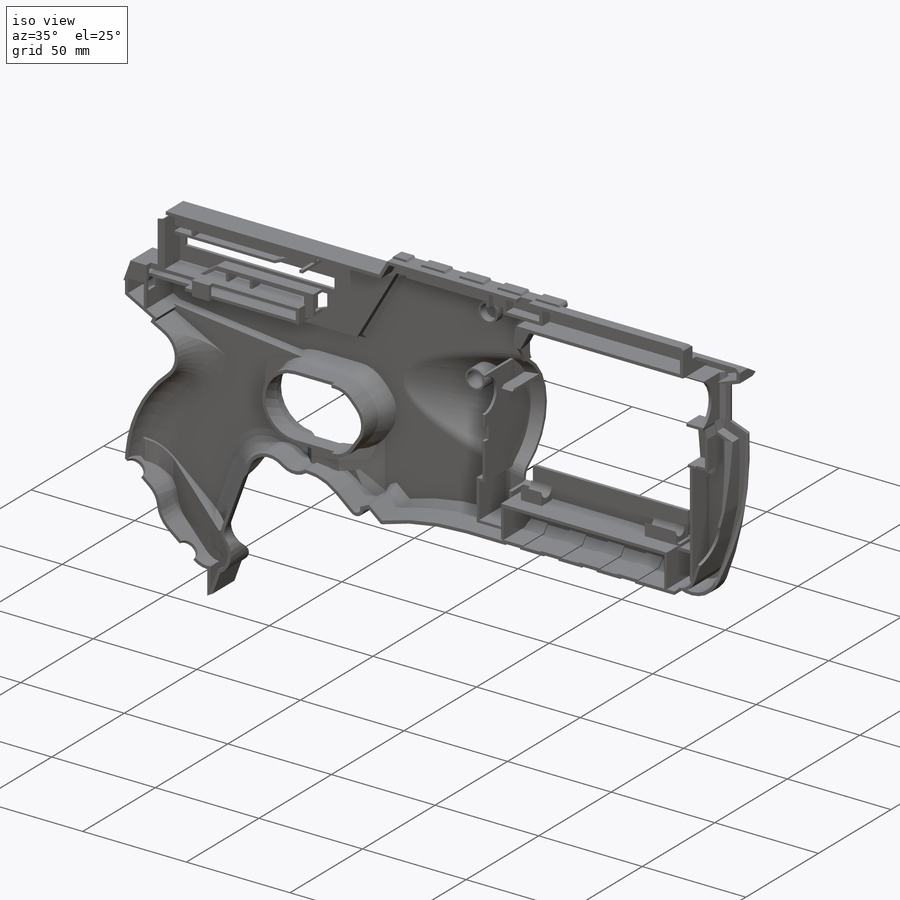
[diagram: iso view]
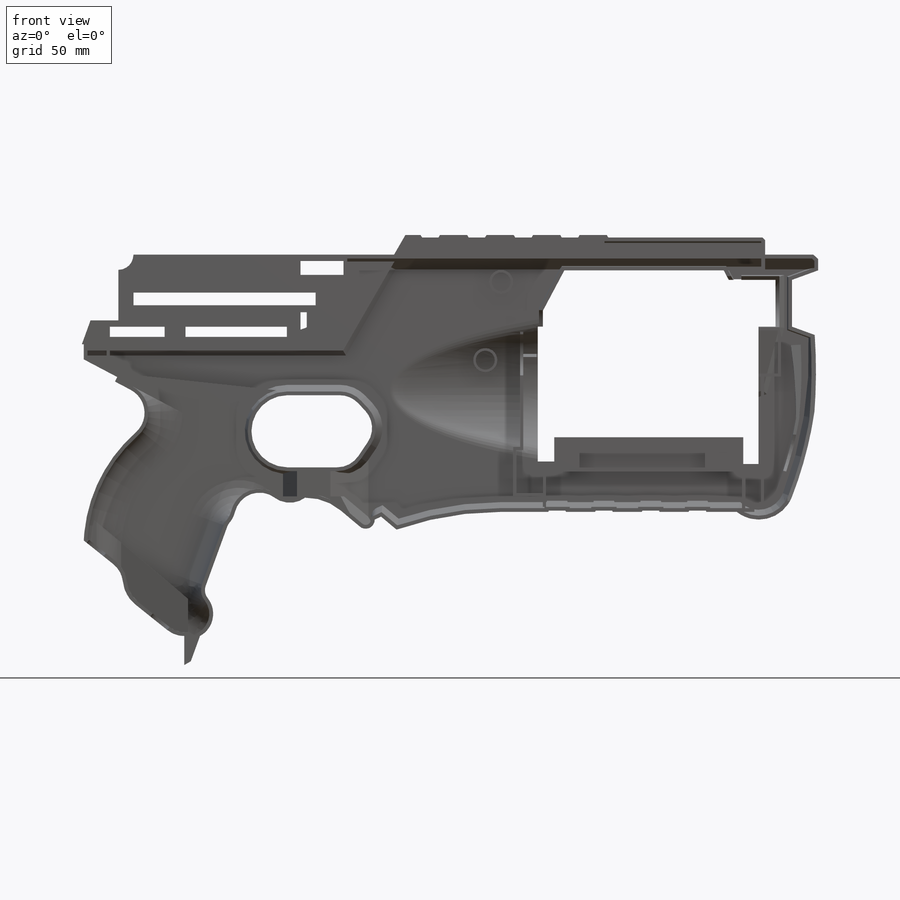
[diagram: front view]
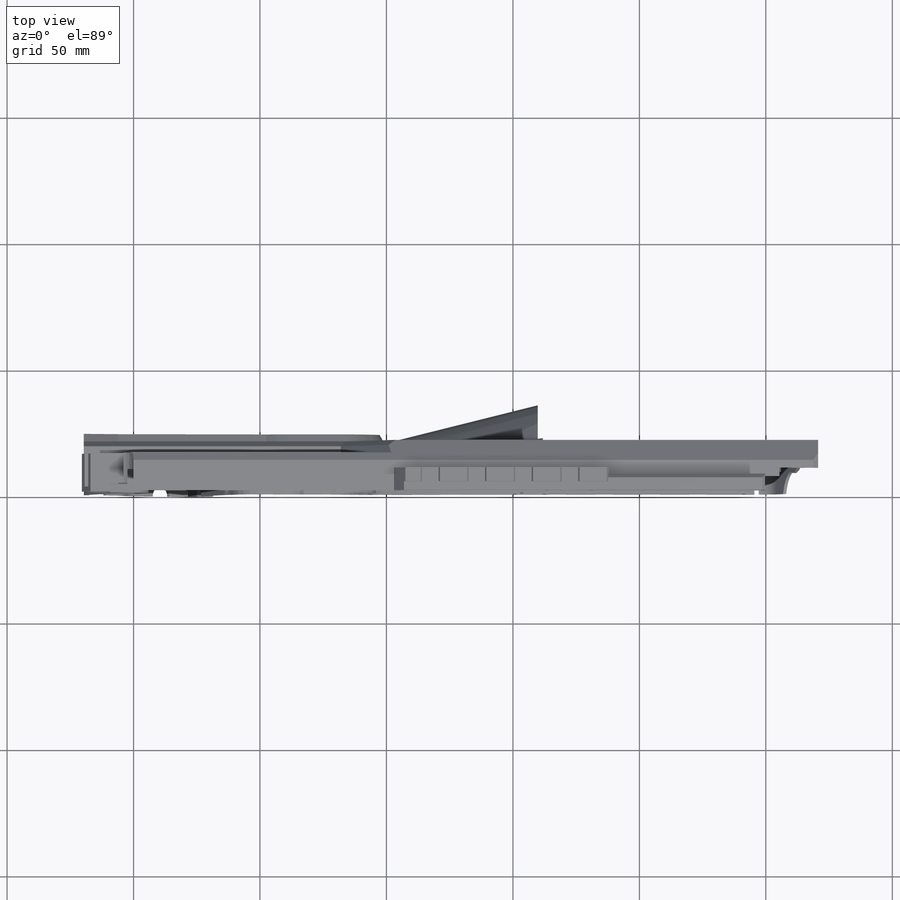
[diagram: top view]
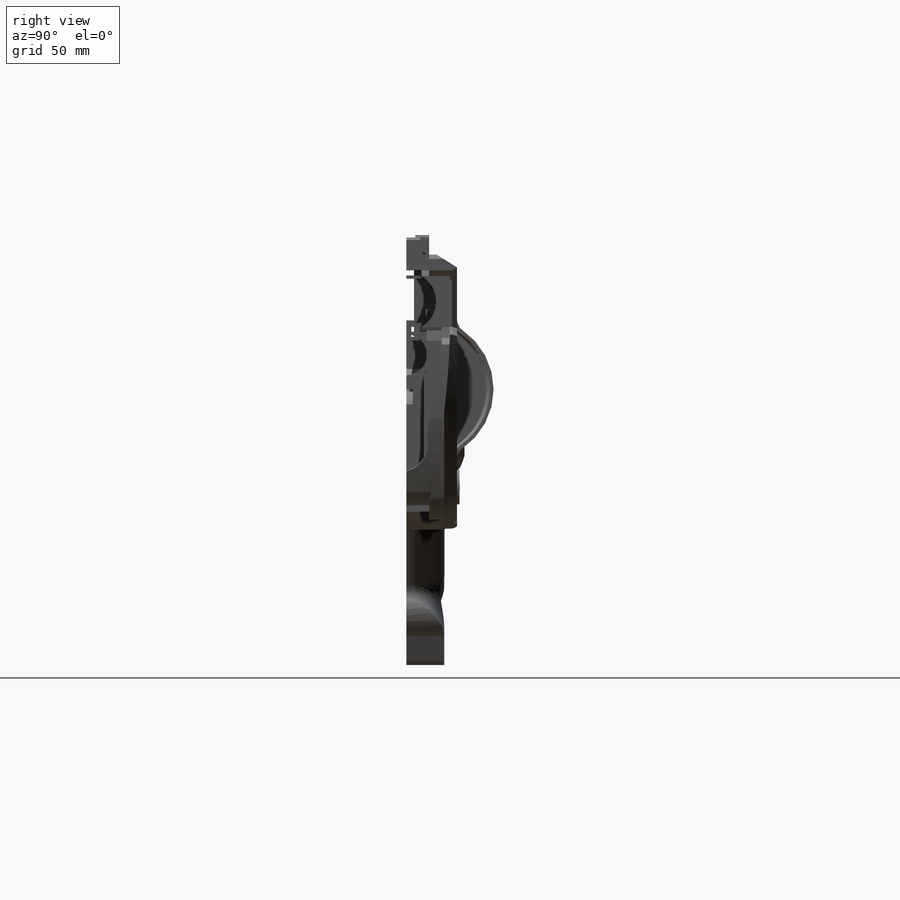
[diagram: right view]
SOLIDWORKS PART (.sldprt)
format: sldprt  version: not decoded by parser v0  size: 5,408,256 bytes
history: native  units: mm
features: sketch x102, cut_extrude x57, extrude x34, chamfer x12, plane x11, fillet x6, sweep x4, material x1, shell x1, revolve x1, mirror x1 (+11 scaffold rows collapsed)
feature tree (241):
  scaffold x11  (default folders/planes/origin — collapsed)
  material  "Material <not specified>"
  sketch  "Sketch2"  dims[c1.D36=~110.940765mm c1.D38=~13.353721mm c1.D40=155.0mm c1.D42=~14.061367mm c1.D48=~2.004294mm c1.D50=1.5mm c1.D47=~3.827472mm c1.D53=~7.515107mm c1.D56=~10.278032mm c1.D64=~3.579455mm c1.D69=~941.34066mm c1.D71=~16.889725mm c1.D75=~14.586344mm c1.D79=~166.938925mm c1.D86=~10.025053mm c1.D88=~5.902008mm c1.D89=5.0mm c1.D90=5.0mm c1.D91=10.0mm c1.D92=10.0mm c1.D94=10.0mm c1.D1=103.0mm c1.D2=4.5mm c1.D3=7.0mm c2.D3=60.0deg c2.D4=6.0mm c2.D5=~3.67001mm c3.D5=60.0deg c3.D6=~7.771884mm c4.D6=60.0deg c5.D6=6.5mm c5.D7=1.0mm c5.D8=0.0mm c5.D9=10.75mm c5.D10=~1.154701mm c6.D10=240.0deg c7.D10=~1.188894mm c8.D10=60.0deg c9.D10=0.0mm c9.D11=1.0mm c9.D12=6.5mm c9.D13=10.75mm c9.D14=1.0mm c10.D14=60.0deg c10.D15=~0.707107mm c11.D15=30.0deg c12.D15=~1.234296mm c13.D15=60.0deg c13.D16=0.0mm c13.D17=6.5mm c13.D18=1.0mm c13.D19=10.75mm c13.D20=~1.351331mm c14.D20=240.0deg c15.D20=~6.912146mm c16.D20=240.0deg c17.D20=6.5mm c17.D21=0.0mm c17.D22=1.0mm c17.D23=10.75mm c17.D24=1.0mm c17.D25=62.0mm c17.D26=4.5mm c17.D27=16.5mm c17.D28=6.0mm c17.D29=4.0mm c17.D30=4.5mm c17.D31=11.0mm c17.D32=~9.526279mm c18.D32=70.0deg c18.D33=18.5mm c18.D34=11.0mm c18.D35=0.0mm c18.D36=50.0mm c18.D37=0.0mm c18.D38=9.0mm c18.D39=3.0mm c18.D41=93.5mm c18.D42=7.0mm c18.D43=41.0mm c18.D44=8.0mm c18.D45=8.0mm c19.D45=40.0deg c19.D46=2.75mm c19.D47=~1.235236mm c20.D47=100.0deg c20.D48=0.0mm c20.D49=6.5mm c20.D50=1.5mm c20.D51=10.0mm c21.D47=5.0mm c21.D52=14.0mm c21.D53=0.0mm c21.D54=2.0mm c21.D55=12.0mm c21.D56=0.0mm c21.D57=0.0mm c21.D58=6.0mm c21.D59=20.0mm c21.D60=11.0mm c21.D61=10.0mm c21.D62=~8.423007mm c22.D62=~122.616134deg c23.D62=20.0mm c24.D62=20.0deg c24.D63=0.75mm c24.D64=6.0mm c24.D65=15.0mm c24.D66=7.0mm c24.D67=2.0mm c24.D68=7.0mm c24.D69=17.0mm c24.D70=2.0mm c24.D71=0.0mm c24.D72=113.0mm c24.D73=15.0mm c24.D74=11.0mm c24.D75=7.0mm c24.D76=16.0mm c24.D77=8.0mm c24.D78=16.0mm c24.D79=0.0mm c24.D80=6.75mm c24.D81=11.5mm c24.D82=3.0mm c24.D83=~2.598076mm c25.D83=60.0deg c25.D84=~9.907412mm c26.D84=160.0deg c27.D84=~14.242252mm c28.D84=40.0deg c28.D85=10.0mm c28.D86=22.0mm c28.D87=2.0mm c28.D88=~33.997483mm c29.D86=15.0mm c29.D88=~16.913754mm c30.D88=70.0deg c30.D93=25.0mm c30.D95=~95.024443mm c30.D36=108.5mm c31.D95=~154.679991mm c31.D74=150.75mm]
  extrude  "Boss-Extrude1"  Depth=20mm
  sketch  "Sketch3"  dims[D1=1.0mm]
  cut_extrude  "Cut-Extrude1"  Depth=5mm
  sketch  "Sketch4"  dims[D1=9.0mm D2=0.0mm D3=6.5mm]
  cut_extrude  "Cut-Extrude2"  [1 undecoded]
  sketch  "Sketch5"  dims[c1.D1=~5.047214mm c1.D2=~76.33725mm c2.D1=0.0mm c2.D2=1.5mm]
  cut_extrude  "Cut-Extrude3"  [1 undecoded]
  sketch  "Sketch6"  dims[D1=17.5mm D2=80.0mm D3=6.5mm D4=12.0mm D5=0.0mm D6=0.0mm D7=13.0mm D8=62.0mm D9=0.0mm D10=63.0mm]
  cut_extrude  "Cut-Extrude4"  Depth=39.5mm
  sketch  "Sketch7"  dims[c1.D1=~13.523321mm c1.D8=10.0mm c2.D1=25.0mm c2.D2=~16.39274mm c2.D3=20.0mm c2.D4=20.0mm c2.D5=~19.746502mm c2.D6=20.0mm c3.D4=28.5mm c3.D5=0.0mm c3.D6=12.0mm c3.D7=64.75mm]
  cut_extrude  "Cut-Extrude5"  Depth=39.5mm
  sketch  "Sketch8"  dims[D1=~19.065026mm]
  cut_extrude  "Cut-Extrude6"  Depth=39.5mm
  sketch  "Sketch9"  dims[D1=~109.268157mm]
  cut_extrude  "Cut-Extrude7"  Depth=5mm
  sketch  "Sketch10"  dims[c1.D1=~5.736652mm c1.D2=~84.946314mm c2.D1=83.0mm c2.D2=0.0mm c2.D3=2.5mm c2.D4=5.5mm]
  cut_extrude  "Cut-Extrude8"  Depth=5mm
  sketch  "Sketch11"  dims[c1.D1=5.5mm c1.D2=~12.20085mm c2.D1=~2.903495mm c2.D2=~72.264768mm c3.D1=12.0mm c3.D2=5.0mm c3.D3=0.0mm c3.D4=7.0mm c3.D5=72.0mm]
  cut_extrude  "Cut-Extrude9"  Depth=23mm
  sketch  "Sketch12"  dims[c1.D1=~3.584802mm c1.D2=~96.901666mm c2.D1=80.0mm c2.D2=4.0mm c2.D3=8.5mm]
  cut_extrude  "Cut-Extrude10"  Depth=13mm
  sketch  "Sketch13"  dims[c1.D1=4.0mm c1.D2=~9.83426mm c2.D1=~13.002059mm c2.D2=~43.083426mm c3.D1=4.0mm c3.D2=~33.249663mm c4.D1=35.0mm c4.D2=20.0mm c4.D3=15.0mm]
  cut_extrude  "Cut-Extrude11"  Depth=13mm
  sketch  "Sketch14"  dims[D1=5.5mm D2=2.75mm D3=8.0mm D4=6.0mm D5=69.0mm]
  cut_extrude  "Cut-Extrude12"  Depth=6mm
  fillet  "Fillet1"  Radius=15mm
  fillet  "Fillet2"  Radius=15mm
  sketch  "Sketch15"  dims[D1=12.0mm D2=23.0mm D3=5.5mm D4=5.5mm D5=6.0mm D6=0.0mm]
  cut_extrude  "Cut-Extrude16"  Depth=10mm
  sketch  "Sketch16"  dims[D1=2.0mm D2=26.0mm D3=6.0mm]
  cut_extrude  "Cut-Extrude17"  Depth=5mm
  sketch  "Sketch17"  dims[c1.D3=40.5742mm c1.D1=6.0mm c1.D2=50.0mm c2.D3=15.0mm]
  plane  "Plane1"  Offset=10mm
  plane  "Plane2"  Offset=20mm
  plane  "Plane3"  Offset=30mm
  plane  "Plane4"  Offset=40mm
  plane  "Plane5"  Offset=50mm
  plane  "Plane6"  Offset=60mm
  sketch  "Sketch23"  dims[c1.D1=~0.567489mm c1.D2=~0.499081mm c2.D1=0.5mm c2.D2=~0.499081mm c2.D3=0.0mm c2.D4=30.75mm c3.D1=0.25mm c3.D2=1.0mm]
  chamfer  "Chamfer1"  Distance=12mm
  chamfer  "Chamfer2"  Distance=3mm
  chamfer  "Chamfer3"  Distance=5mm
  chamfer  "Chamfer4"  Distance=2mm
  chamfer  "Chamfer5"  Distance=5mm
  chamfer  "Chamfer6"  Distance=3mm
  chamfer  "Chamfer7"  Distance=1mm
  chamfer  "Chamfer8"  Distance=0.5mm
  sketch  "Sketch24"  dims[D1=26.0mm]
  extrude  "Boss-Extrude9"  [1 undecoded]
  sketch  "Sketch25"  dims[c1.D1=~5.294229mm c1.D2=~6.241597mm c2.D1=2.25mm c2.D2=15.0mm]
  extrude  "Boss-Extrude10"  [1 undecoded]
  chamfer  "Chamfer10"  Distance=1mm
  chamfer  "Chamfer11"  Distance=1.5mm
  sketch  "Sketch27"  dims[c1.D1=~3.449568mm c1.D2=~84.696152mm c2.D1=1.5mm]
  cut_extrude  "Cut-Extrude18"  Depth=5mm
  sketch  "Sketch29"  dims[c1.D1=15.0mm c1.D2=~6.86847mm c2.D1=15.0mm c2.D2=~8.958873mm c3.D1=15.0mm c3.D2=~6.56984mm c4.D1=15.0mm c4.D2=~9.854761mm c5.D1=7.0mm c5.D2=7.0mm c5.D3=7.0mm c5.D4=7.0mm c5.D5=12.0mm c5.D6=11.5mm c5.D7=11.5mm c5.D8=11.5mm]
  cut_extrude  "Cut-Extrude20"  Depth=0.5mm
  sketch  "Sketch30"  dims[D1=5.0mm D2=5.0mm D3=5.0mm D4=5.0mm D5=5.0mm D6=1.0mm D7=1.0mm D8=1.0mm D9=1.0mm]
  cut_extrude  "Cut-Extrude21"  Depth=0.5mm
  sketch  "Sketch31"  dims[c1.D1=14.0mm c1.D2=~39.556719mm c2.D2=130.0deg c2.D3=40.0mm]
  cut_extrude  "Cut-Extrude22"  Depth=7mm
  plane  "Plane7"
  sketch  "Sketch32"  dims[c1.D1=~19.024616mm c1.D2=~0.144047mm c2.D1=1.0mm]
  extrude  "Boss-Extrude12"  [1 undecoded]
  sketch  "Sketch33"  dims[D1=0.0mm]
  cut_extrude  "Cut-Extrude23"  Depth=7mm
  sketch  "Sketch34"  dims[D1=2.0mm]
  cut_extrude  "Cut-Extrude24"  Depth=11.25mm
  sketch  "Sketch35"  dims[D1=~51.380158mm]
  sketch  "Sketch36"  dims[D1=~57.286949mm]
  plane  "Plane8"
  sketch  "Sketch37"  dims[D1=~3.894683mm]
  sweep  "Sweep1"
  fillet  "Fillet5"  Radius=2.5mm
  fillet  "Fillet6"  Radius=5mm
  chamfer  "Chamfer12"  Distance=3mm
  shell  "Shell6"  Thickness=1.5mm
  sketch  "Sketch38"  dims[D1=8.0mm D2=15.0mm]
  cut_extrude  "Cut-Extrude25"  [1 undecoded]
  sketch  "Sketch39"  dims[D1=8.0mm D2=75.0mm]
  cut_extrude  "Cut-Extrude27"  [1 undecoded]
  sketch  "Sketch41"  dims[c1.D1=34.0mm c1.D2=~9.365807mm c2.D1=0.0mm c2.D2=7.0mm c2.D3=38.0mm c3.D2=~96.556572mm]
  cut_extrude  "Cut-Extrude28"  Depth=3mm
  sketch  "Sketch42"  dims[D1=~12.682242mm]
  cut_extrude  "Cut-Extrude29"  [1 undecoded]
  sketch  "Sketch43"  dims[D1=5.0mm D2=1.25mm D3=1.25mm]
  extrude  "Boss-Extrude13"  [1 undecoded]
  sketch  "Sketch44"  dims[D1=48.5mm D2=1.0mm D3=1.25mm D4=1.25mm D5=1.25mm D6=10.0mm D7=13.0mm]
  extrude  "Boss-Extrude14"  Depth=1mm
  sketch  "Sketch45"  dims[D1=19.0mm D2=16.0mm D3=1.5mm D4=0.0mm]
  extrude  "Boss-Extrude15"  [1 undecoded]
  sketch  "Sketch46"  dims[c1.D1=~3.14729mm c1.D2=~6.884445mm c2.D1=6.0mm c2.D2=3.0mm c2.D3=6.5mm]
  cut_extrude  "Cut-Extrude30"  Depth=3mm
  sketch  "Sketch47"  dims[D1=4.0mm D2=2.75mm D3=1.25mm D4=1.25mm]
  extrude  "Boss-Extrude16"  Depth=7mm
  sketch  "Sketch49"  dims[c1.D1=~13.570068mm c1.D2=~28.555215mm c2.D1=0.0mm c2.D2=~28.555215mm]
  cut_extrude  "Cut-Extrude31"  Depth=9mm
  sketch  "Sketch50"  dims[c1.D1=~17.346114mm c1.D2=~25.22076mm c2.D1=0.0mm c2.D2=~25.22076mm c2.D3=0.0mm]
  cut_extrude  "Cut-Extrude32"  Depth=2.75mm
  sketch  "Sketch51"  dims[c1.D1=~230.558775mm c1.D3=~346.069042mm c2.D1=0.0mm c2.D2=100.0mm]
  cut_extrude  "Cut-Extrude33"  Depth=14.75mm
  sketch  "Sketch52"  dims[c1.D1=~16.177418mm c1.D2=~7.943144mm c2.D1=~24.554176mm c2.D2=~24.091442mm c3.D1=0.0mm c3.D2=~24.554176mm c3.D3=~24.091442mm c3.D4=~7.01444mm]
  cut_extrude  "Cut-Extrude34"  [1 undecoded]
  sketch  "Sketch53"  dims[c1.D1=~2.431754mm c1.D2=~23.819341mm c2.D1=~0.449689mm c2.D2=~5.621216mm]
  cut_extrude  "Cut-Extrude35"  [1 undecoded]
  sketch  "Sketch54"  dims[D1=0.0mm]
  cut_extrude  "Cut-Extrude36"  Depth=14.75mm
  sketch  "Sketch55"  dims[D1=0.0mm]
  extrude  "Boss-Extrude17"  [1 undecoded]
  sketch  "Sketch56"  dims[D1=1.25mm]
  extrude  "Boss-Extrude18"  [1 undecoded]
  sketch  "Sketch57"  dims[c1.D1=~32.72957mm c1.D2=~40.627891mm c1.D4=~1.153567mm c2.D1=~2.120913mm c2.D11=~14.279935mm c2.D8=1.75mm c3.D1=0.0mm c3.D2=0.0mm c3.D3=0.0mm c3.D4=7.0mm c3.D5=35.0mm c3.D6=6.0mm c3.D7=0.0mm c3.D8=0.0mm c4.D1=0.0mm c4.D9=3.0mm c4.D10=~2.468393mm c5.D10=30.0deg c5.D11=0.0mm]
  cut_extrude  "Cut-Extrude37"  [1 undecoded]
  sketch  "Sketch58"  dims[D1=0.0mm D2=0.0mm]
  cut_extrude  "Cut-Extrude38"  Depth=14.75mm
  sketch  "Sketch59"  dims[D1=3.0mm D2=2.0mm]
  sketch  "Sketch60"
  sweep  "Sweep3"
  sketch  "Sketch61"  dims[D1=0.0mm]
  revolve  "Revolve1"  [1 undecoded]
  sketch  "Sketch62"  dims[D1=0.0mm]
  sweep  "Sweep4"
  sketch  "Sketch63"  dims[D1=0.0mm]
  sweep  "Sweep5"
  sketch  "Sketch64"  dims[c1.D1=1.25mm c1.D2=1.25mm c1.D3=50.0mm c1.D4=42.0mm c1.D5=5.5mm c1.D6=~2.051574mm c2.D5=5.5mm c2.D6=~2.507479mm c3.D5=1.25mm c3.D6=1.25mm c3.D7=25.0mm c3.D8=12.75mm]
  extrude  "Boss-Extrude19"  [1 undecoded]
  sketch  "Sketch65"  dims[c1.D1=~6.794229mm c1.D2=~2.329977mm c2.D1=~6.794229mm c2.D2=~1.751113mm c3.D1=~6.794229mm c3.D2=~2.523514mm c4.D1=1.25mm c4.D2=1.25mm c4.D3=1.25mm c4.D4=5.5mm c4.D5=29.0mm c4.D6=10.5mm]
  extrude  "Boss-Extrude20"  Depth=3mm
  sketch  "Sketch75"  dims[D1=~4.909317mm D2=0.0mm]
  cut_extrude  "Cut-Extrude39"  Depth=2mm
  sketch  "Sketch76"  dims[c1.D1=~3.704293mm c1.D2=4.25mm c2.D1=1.5mm c2.D3=0.0mm]
  cut_extrude  "Cut-Extrude40"  Depth=2mm
  sketch  "Sketch78"  dims[D1=9.5mm D2=7.5mm D3=5.0mm D4=15.0mm]
  extrude  "Boss-Extrude35"  Depth=4mm
  sketch  "Sketch79"  dims[D1=9.5mm D2=7.5mm D3=6.27mm D4=30.9mm]
  extrude  "Boss-Extrude36"  [1 undecoded]
  sketch  "Sketch80"  dims[c1.D2=~3.617139mm c1.D1=~34.491401mm c2.D2=~36.95113mm c2.D3=1.25mm c2.D4=~1.421247mm c2.D1=4.0mm c3.D2=1.25mm]
  extrude  "Boss-Extrude37"  [1 undecoded]
  plane  "Plane9"
  sketch  "Sketch82"  dims[D1=6.0mm D2=36.0mm D3=8.0mm]
  cut_extrude  "Cut-Extrude41"  Depth=6mm
  sketch  "Sketch83"  dims[D1=0.0mm]
  cut_extrude  "Cut-Extrude42"  [1 undecoded]
  plane  "Plane10"
  sketch  "Sketch84"  dims[c1.D1=~11.422506mm c1.D2=12.0mm c2.D1=15.0mm]
  cut_extrude  "Cut-Extrude43"  Depth=6mm
  sketch  "Sketch85"  dims[c1.D1=~5.880328mm c1.D2=~0.422195mm c2.D1=~1.512552mm c2.D2=~6.587282mm c3.D1=0.0mm c3.D2=7.0mm]
  extrude  "Boss-Extrude38"  [1 undecoded]
  sketch  "Sketch86"  dims[D1=0.0mm]
  extrude  "Boss-Extrude39"  [1 undecoded]
  sketch  "Sketch90"  dims[D1=~1.349937mm]
  extrude  "Boss-Extrude42"  [1 undecoded]
  sketch  "Sketch91"  dims[D1=1.25mm D2=1.25mm D3=1.25mm D4=1.25mm D5=17.0mm D6=6.25mm]
  extrude  "Boss-Extrude43"  [1 undecoded]
  sketch  "Sketch94"  dims[c1.D1=~2.142847mm c1.D2=7.5mm c2.D1=0.0mm]
  extrude  "Boss-Extrude44"  [1 undecoded]
  sketch  "Sketch97"  dims[c1.D1=17.5mm c1.D2=~2.002334mm c2.D1=1.25mm]
  extrude  "Boss-Extrude46"  [1 undecoded]
  sketch  "Sketch104"  dims[c1.D2=~16.359655mm c1.D7=35.0mm c1.D12=12.0mm c1.D13=36.0mm c1.D1=0.0mm c2.D2=2.0mm c2.D3=6.0mm c2.D4=0.0mm c2.D5=7.0mm c2.D6=7.5mm c2.D8=10.0mm c2.D9=0.0mm c2.D10=5.0mm c2.D11=1.5mm]
  cut_extrude  "Cut-Extrude48"  Depth=10mm
  sketch  "Sketch105"  dims[D1=1.25mm D2=1.25mm D3=1.25mm D4=0.0mm D5=7.5mm D6=1.25mm D7=1.25mm D8=1.25mm D9=1.25mm D10=13.0mm D11=19.5mm D12=4.0mm D13=38.0mm D14=0.0mm]
  extrude  "Boss-Extrude52"  [1 undecoded]
  sketch  "Sketch106"  dims[D1=24.0mm D2=~21.751634mm]
  cut_extrude  "Cut-Extrude49"  Depth=10mm
  sketch  "Sketch107"  dims[D1=3.0mm]
  cut_extrude  "Cut-Extrude50"  Depth=10mm
  sketch  "Sketch109"  dims[c1.D1=~6.149575mm c1.D2=1.25mm c2.D1=~6.149575mm c2.D2=1.25mm c3.D1=6.5mm c3.D2=6.5mm]
  extrude  "Boss-Extrude53"  Depth=8mm
  sketch  "Sketch111"  dims[c1.D1=~1.528727mm c1.D3=2.5mm c2.D1=1.0mm c2.D2=1.0mm]
  cut_extrude  "Cut-Extrude52"  Depth=14mm
  sketch  "Sketch112"  dims[D1=~2.958462mm]
  extrude  "Boss-Extrude54"  [1 undecoded]
  sketch  "Sketch113"  dims[c1.D1=~41.403228mm c1.D2=~42.438309mm c2.D1=0.0mm c2.D2=0.0mm c2.D3=0.0mm c2.D4=1.5mm]
  cut_extrude  "Cut-Extrude53"  Depth=2mm
  sketch  "Sketch115"  dims[c1.D1=~31.743126mm c1.D2=~13.071236mm c2.D1=0.0mm c2.D2=0.0mm c2.D3=0.0mm c2.D4=0.0mm]
  cut_extrude  "Cut-Extrude54"  Depth=4mm
  sketch  "Sketch116"  dims[c1.D1=~15.347568mm c1.D2=~10.842381mm c2.D1=~4.819669mm c2.D2=~43.594915mm c3.D1=0.0mm c3.D2=0.0mm]
  cut_extrude  "Cut-Extrude55"  Depth=4mm
  sketch  "Sketch118"  dims[D1=7.0mm D2=~0.185476mm]
  cut_extrude  "Cut-Extrude56"  [1 undecoded]
  sketch  "Sketch120"  dims[D1=~49.360043mm D2=~10.987298mm]
  cut_extrude  "Cut-Extrude57"  Depth=13mm
  sketch  "Sketch121"  dims[c1.D1=~17.821215mm c1.D2=~2.757474mm c2.D1=0.0mm c2.D2=12.0mm]
  extrude  "Boss-Extrude56"  [1 undecoded]
  sketch  "Sketch122"  dims[D1=0.0mm]
  extrude  "Boss-Extrude58"  [1 undecoded]
  sketch  "Sketch108"  dims[c1.D4=~5.014383mm c1.D1=~5.516628mm c1.D2=~3.120957mm c2.D1=18.0mm c2.D2=6.0mm c2.D3=2.5mm c2.D4=4.0mm c2.D5=5.5mm c3.D4=1.0mm]
  cut_extrude  "Cut-Extrude51"  Depth=10mm
  sketch  "Sketch124"  dims[c1.D1=7.0mm c1.D2=~3.826976mm c2.D1=7.0mm]
  cut_extrude  "Cut-Extrude58"  [1 undecoded]
  mirror  "Mirror1"
  plane  "Plane11"
  sketch  "Sketch125"  dims[D1=~242.702391mm D2=~384.847666mm]
  cut_extrude  "Cut-Extrude59"  Depth=152mm
  sketch  "Sketch126"  dims[D1=13.0mm D2=80.0mm]
  extrude  "Boss-Extrude59"  Depth=12mm
  sketch  "Sketch127"  dims[c1.D1=~10.208592mm c1.D2=80.0mm c2.D1=1.5mm]
  cut_extrude  "Cut-Extrude60"  [1 undecoded]
  sketch  "Sketch128"  dims[D1=7.75mm]
  sketch  "Sketch129"  dims[c1.D1=~6.387628mm c1.D2=~13.568796mm c2.D1=~6.387628mm c2.D2=~17.378007mm c3.D1=7.0mm c3.D2=6.0mm c3.D3=3.5mm c3.D4=80.0mm c4.D4=90.0deg c5.D4=6.0mm c6.D4=90.0deg c7.D4=3.0mm c7.D5=15.0mm c7.D6=10.0mm c7.D7=4.5mm c7.D8=1.0mm]
  extrude  "Boss-Extrude60"  [1 undecoded]
  sketch  "Sketch130"  dims[D1=7.0mm]
  cut_extrude  "Cut-Extrude61"  Depth=10mm
  sketch  "Sketch131"  dims[D1=6.0mm]
  cut_extrude  "Cut-Extrude62"  Depth=15mm
  sketch  "Sketch133"  dims[c1.D1=~45.159056mm c1.D2=~12.686298mm c2.D1=0.0mm c2.D2=0.0mm c2.D3=0.0mm c2.D4=0.0mm]
  cut_extrude  "Cut-Extrude63"  Depth=26mm
  sketch  "Sketch134"  dims[c1.D1=~59.325462mm c1.D2=~12.415951mm c2.D1=0.0mm c2.D2=0.0mm c2.D3=0.0mm c2.D4=0.0mm]
  cut_extrude  "Cut-Extrude64"  Depth=26mm
  sketch  "Sketch135"  dims[D1=0.0mm]
  extrude  "Boss-Extrude61"  Depth=3mm
  chamfer  "Chamfer13"  Distance=8mm
  sketch  "Sketch136"  dims[c1.D1=~6.313281mm c1.D2=~19.314048mm c2.D1=19.0mm c2.D2=0.0mm c2.D3=7.5mm c2.D4=5.0mm]
  cut_extrude  "Cut-Extrude65"  Depth=5mm
  sketch  "Sketch139"  dims[c1.D1=~16.456931mm c1.D2=~2.216149mm c2.D1=0.0mm c2.D2=1.0mm]
  cut_extrude  "Cut-Extrude66"  Depth=5mm
  sketch  "Sketch140"  dims[c1.D1=~8.696843mm c1.D2=~74.796921mm c2.D1=0.0mm c2.D2=5.0mm c2.D3=0.0mm c2.D4=0.0mm]
  extrude  "Boss-Extrude62"  Depth=1mm
  fillet  "Fillet7"  [1 undecoded]
  fillet  "Fillet8"  [1 undecoded]
  sketch  "Sketch141"  dims[D1=1.5mm D2=3.5mm]
  extrude  "Boss-Extrude63"  Depth=0.1mm
  sketch  "Sketch142"  dims[c1.D1=25.0mm c1.D2=20.0mm c1.D10=25.0mm c1.D11=25.0mm c1.D3=2.0mm c1.D4=2.0mm c1.D5=2.0mm c1.D6=2.0mm c1.D7=1.0mm c1.D8=1.0mm c1.D9=1.0mm c2.D10=30.0mm c2.D11=5.0mm c2.D2=2.0mm c2.D1=2.0mm c2.D3=2.0mm]
  extrude  "Boss-Extrude65"  Depth=0.1mm
  sketch  "Sketch143"  dims[D1=2.0mm D2=2.0mm]
  extrude  "Boss-Extrude66"  Depth=0.1mm
  sketch  "Sketch144"  dims[D1=2.0mm D2=2.0mm]
  extrude  "Boss-Extrude67"  Depth=0.1mm
decode coverage: 176 of 218 modeling features carry decoded parameters
note: ~ marks probable driven/reference dimensions
note: 36 parameter values undecoded
summary: no parameter record found for 36 features; profile_refs inferred from adjacent sketches, not decoded
note: suppression state not decoded; provenance and decode notes live in map.json
